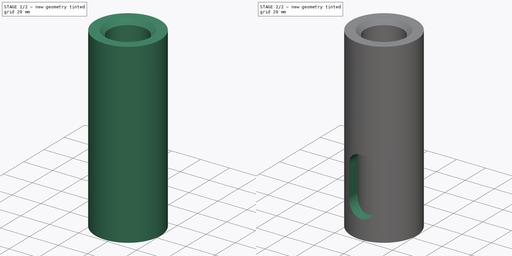
[diagram: build sequence overview — one tinted view per stage of 2, left to right]
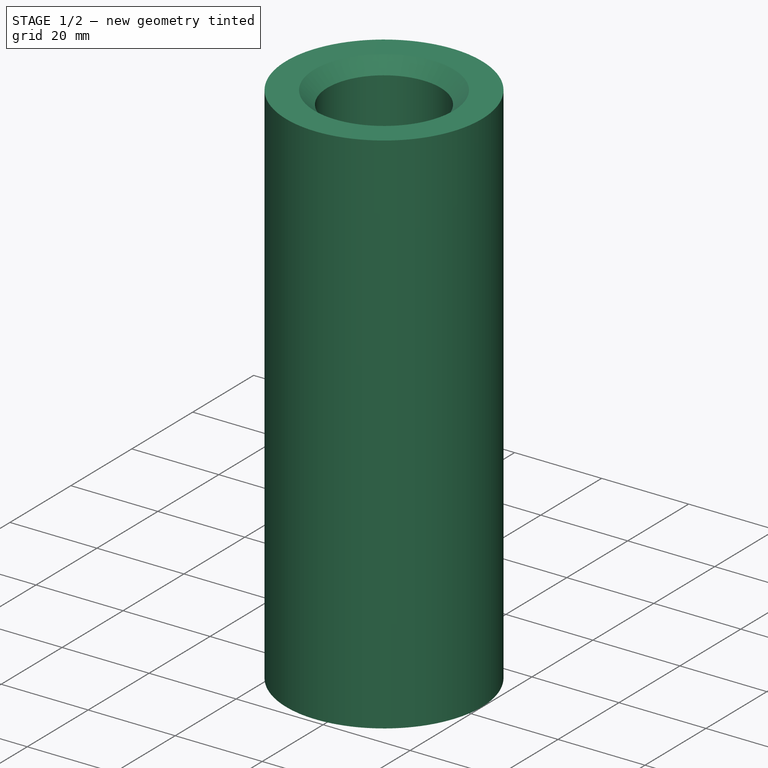
[diagram: stage 1 of 2 — iso view after this stage's code; geometry added in this stage tinted green]
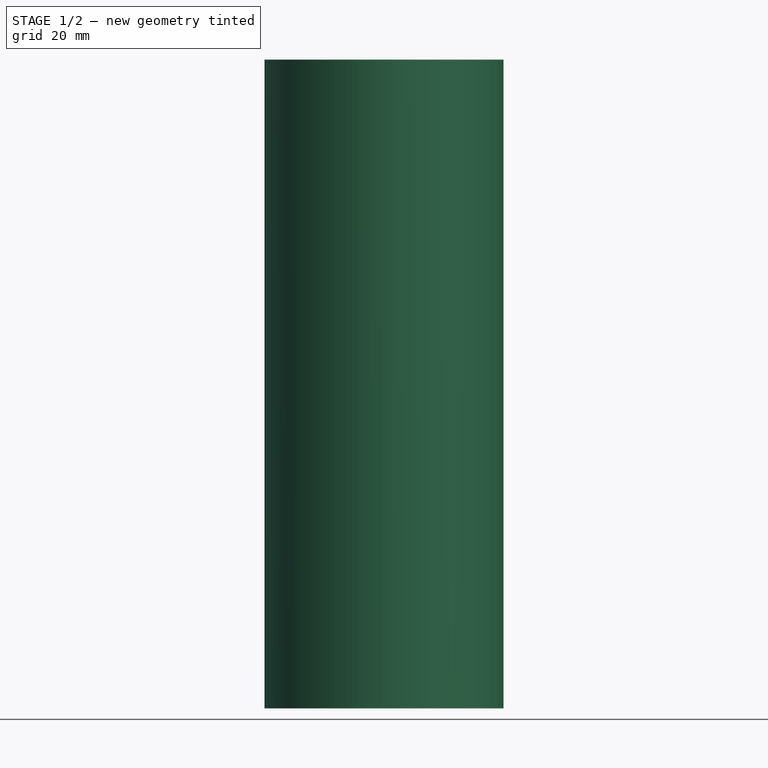
[diagram: stage 1 of 2 — front view after this stage's code; geometry added in this stage tinted green]
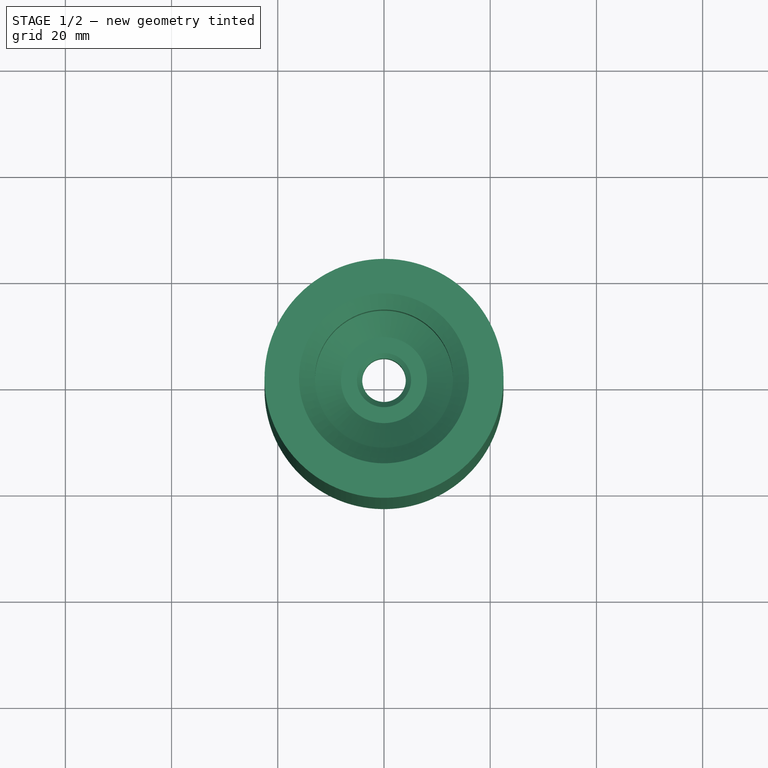
[diagram: stage 1 of 2 — top view after this stage's code; geometry added in this stage tinted green]
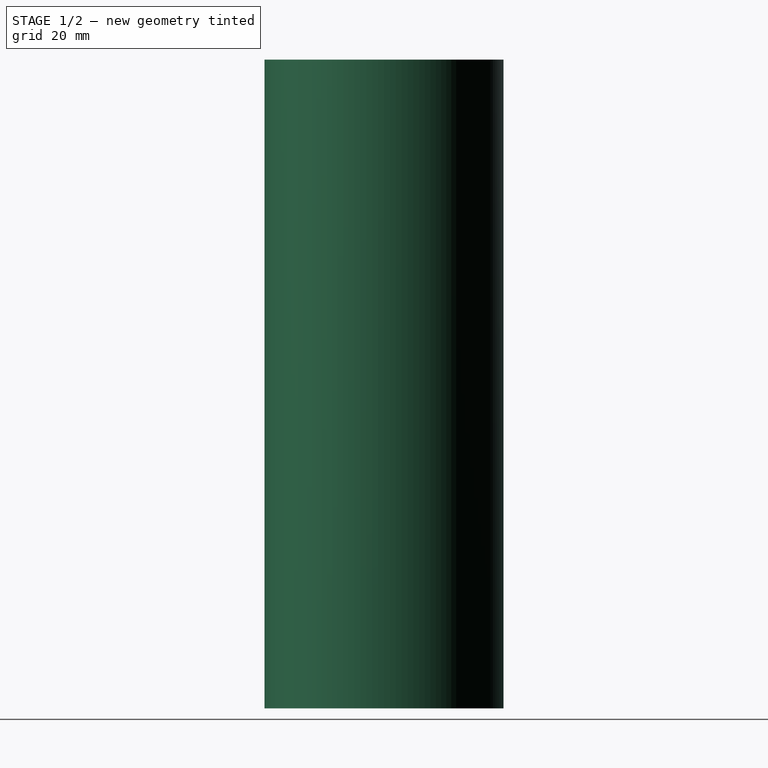
[diagram: stage 1 of 2 — right view after this stage's code; geometry added in this stage tinted green]
FCSTD DOCUMENT  (FreeCAD 0.21R33668 +26 (Git))
Label: concentricity_tool
License: All rights reserved
LicenseURL: https://en.wikipedia.org/wiki/All_rights_reserved
objects: Sketcher::SketchObject×2, PartDesign::Revolution×1, PartDesign::Pocket×1, PartDesign::Body×1
note: 7 computed .brp shape members not serialized (recipe doc carries the construction recipe); baked Part::Feature solids carry a one-line shape summary decoded from their .brp

FEATURE [Sketcher::SketchObject] Sketch
  FullyConstrained = true
  MapMode = 5
  Placement = pos=(0,0,0) rot=(1,0,0;1.5708rad)
  Support = -> [XZ_Plane]
  sketch-geometry (11):
    g0: LineSegment StartX=-22.5 StartY=0 StartZ=0 EndX=-15.5 EndY=0 EndZ=0
    g1: LineSegment StartX=-4.1 StartY=102.15 StartZ=0 EndX=-4.1 EndY=93.15 EndZ=0
    g2: LineSegment StartX=-4.1 StartY=93.15 StartZ=0 EndX=-15.5 EndY=75 EndZ=0
    g3: LineSegment StartX=-15.5 StartY=75 StartZ=0 EndX=-15.5 EndY=0 EndZ=0
    g4: LineSegment StartX=-8.1 StartY=103.15 StartZ=0 EndX=-5.1 EndY=103.15 EndZ=0
    g5: LineSegment StartX=-22.5 StartY=0 StartZ=0 EndX=-22.5 EndY=122.15 EndZ=0
    g6: LineSegment StartX=-22.5 StartY=122.15 StartZ=0 EndX=-16 EndY=122.15 EndZ=0
    g7: LineSegment StartX=-8.1 StartY=103.15 StartZ=0 EndX=-13 EndY=107.35 EndZ=0
    g8: LineSegment StartX=-13 StartY=107.35 StartZ=0 EndX=-13 EndY=119.15 EndZ=0
    g9: LineSegment StartX=-5.1 StartY=103.15 StartZ=0 EndX=-4.1 EndY=102.15 EndZ=0
    g10: LineSegment StartX=-16 StartY=122.15 StartZ=0 EndX=-13 EndY=119.15 EndZ=0
  constraints (34):
    c: PointOnObject(g0,g-1)
    c: Horizontal(g0)
    c: Vertical(g1)
    c: Coincident(g2,g1)
    c: Coincident(g3,g2)
    c: Vertical(g3)
    c: Coincident(g0,g3)
    c: DistanceX(g0,g-1) = 15.5
    c: DistanceY(g3,g3) = 75
    c: Horizontal(g4)
    c: DistanceX(g4,g-1) = 8.1
    c: Coincident(g5,g0)
    c: Vertical(g5)
    c: DistanceY(g4,g5) = 19
    c: DistanceX(g0,g0) = 7
    c: Coincident(g6,g5)
    c: Horizontal(g6)
    c: Coincident(g7,g4)
    c: Coincident(g8,g7)
    c: Vertical(g8)
    c: DistanceY(g4,g7) = 4.2
    c: Angle(g9,g1) = 2.35619
    c: Coincident(g1,g9)
    c: Coincident(g4,g9)
    c: DistanceX(g1,g-1) = 4.1
    c: DistanceY(g-1,g4) = 103.15
    c: DistanceY(g1,g4) = 10
    c: DistanceY(g1,g4) = 1
    c: Coincident(g6,g10)
    c: Coincident(g8,g10)
    c: DistanceX(g8,g-1) = 13
    c: DistanceY(g8,g6) = 3
    c: Angle(g10,g8) = 2.35619
    c: Angle(g3,g2) = 2.58077
FEATURE [PartDesign::Revolution] Revolution
  Angle = 360
  Axis = (0,-2e-16,1)
  Base = (0,0,0)
  Placement = pos=(0,0,0) rot=(1,0,0;1.5708rad)
  Profile = -> Sketch
  ReferenceAxis = -> Sketch [V_Axis]
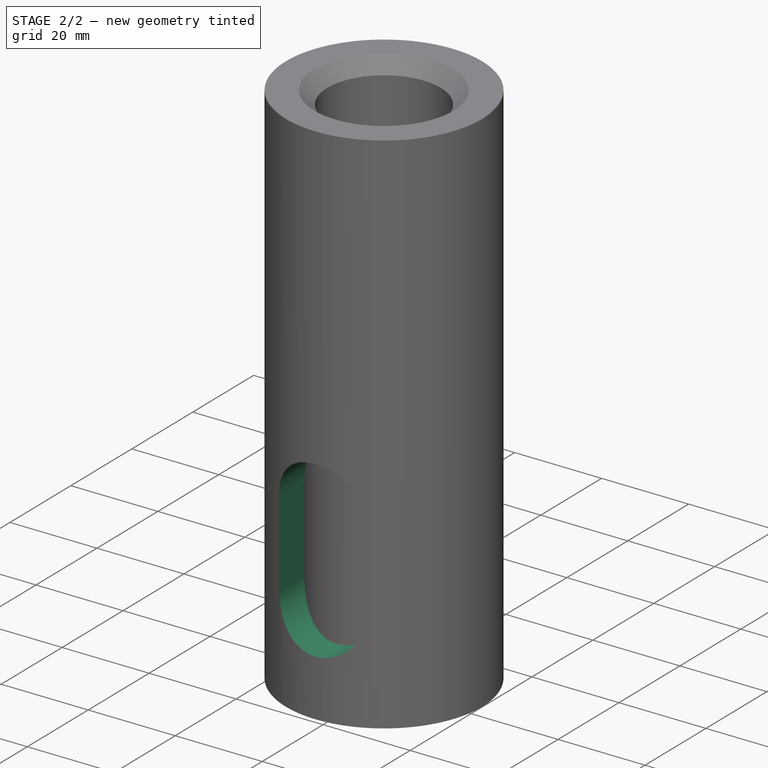
[diagram: stage 2 of 2 — iso view after this stage's code; geometry added in this stage tinted green]
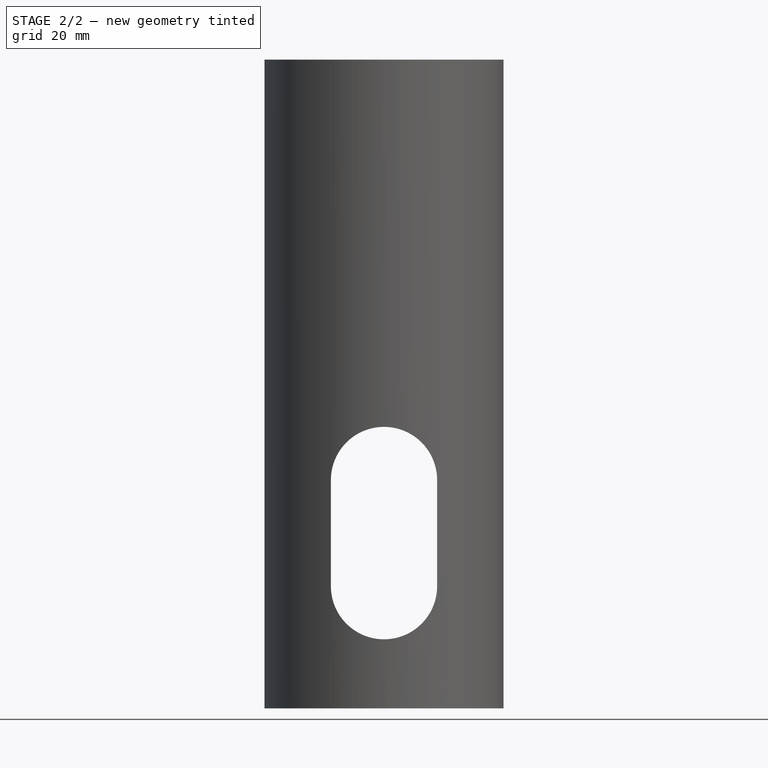
[diagram: stage 2 of 2 — front view after this stage's code; geometry added in this stage tinted green]
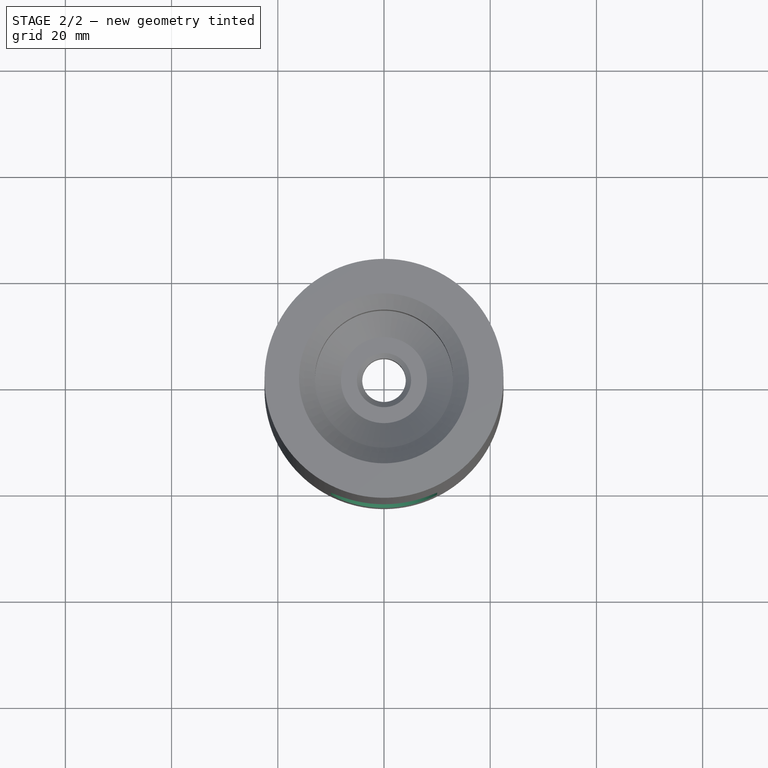
[diagram: stage 2 of 2 — top view after this stage's code; geometry added in this stage tinted green]
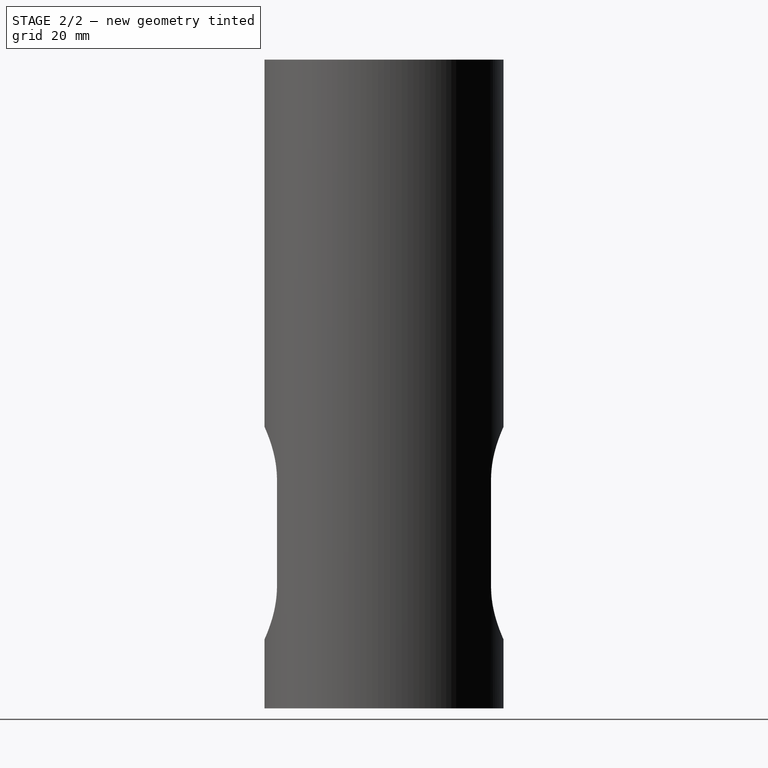
[diagram: stage 2 of 2 — right view after this stage's code; geometry added in this stage tinted green]
FEATURE [Sketcher::SketchObject] Sketch001
  FullyConstrained = true
  MapMode = 5
  Placement = pos=(0,0,0) rot=(1,0,0;1.5708rad)
  Support = -> [XZ_Plane]
  sketch-geometry (5):
    g0: ArcOfCircle CenterX=0 CenterY=23 CenterZ=0 NormalX=0 NormalY=0 NormalZ=1 AngleXU=0 Radius=10 StartAngle=3.14159 EndAngle=6.28319
    g1: ArcOfCircle CenterX=0 CenterY=43 CenterZ=0 NormalX=0 NormalY=0 NormalZ=1 AngleXU=0 Radius=10 StartAngle=-8e-15 EndAngle=3.14159
    g2: LineSegment StartX=10 StartY=23 StartZ=0 EndX=10 EndY=43 EndZ=0
    g3: LineSegment StartX=-10 StartY=43 StartZ=0 EndX=-10 EndY=23 EndZ=0
    g4: LineSegment StartX=0 StartY=0 StartZ=0 EndX=0 EndY=22.5 EndZ=0
  constraints (13):
    c: Tangent(g0,g2) = -1.5708
    c: Tangent(g2,g1) = -1.5708
    c: Tangent(g1,g3) = -1.5708
    c: Tangent(g3,g0) = -1.5708
    c: Equal(g0,g1)
    c: PointOnObject(g0,g-2)
    c: PointOnObject(g1,g-2)
    c: DistanceY(g-1,g0) = 23
    c: DistanceY(g0,g1) = 20
    c: Diameter(g0) = 20
    c: Coincident(g4,g-1)
    c: PointOnObject(g4,g-2)
    c: DistanceY(g4,g4) = 22.5
FEATURE [PartDesign::Pocket] Pocket
  BaseFeature = -> Revolution
  Direction = (0,1,2e-16)
  Length = 11
  Length2 = 5
  Midplane = true
  Placement = pos=(0,0,0) rot=(1,0,0;1.5708rad)
  Profile = -> Sketch001
  ReferenceAxis = -> Sketch001 [N_Axis]
  Type = 1
FEATURE [PartDesign::Body] Body
  Group = -> [Sketch,Revolution,Sketch001,Pocket]
  Origin = -> Origin
  Tip = -> Pocket
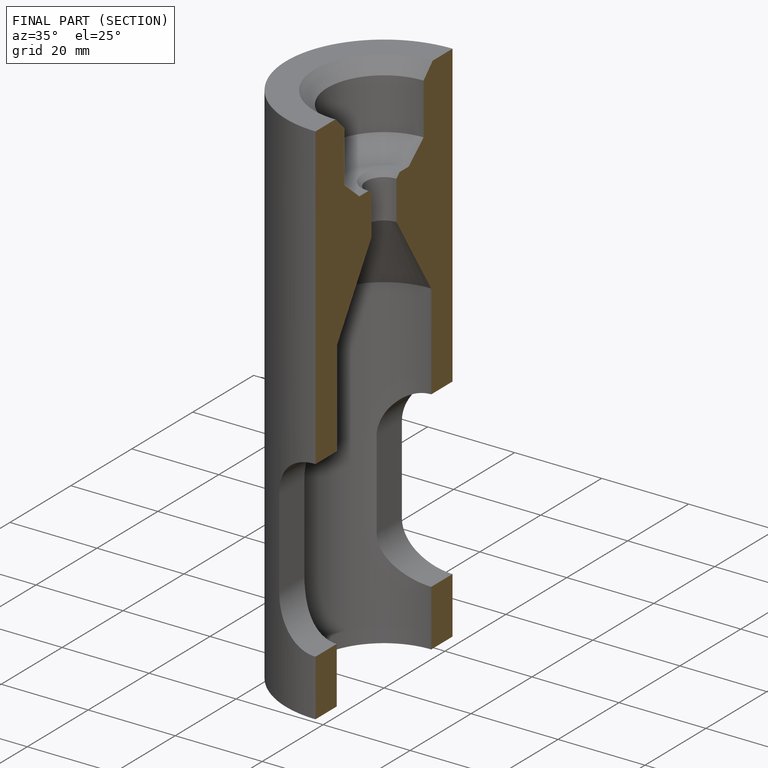
[diagram: finished part — half-section view (interior)]
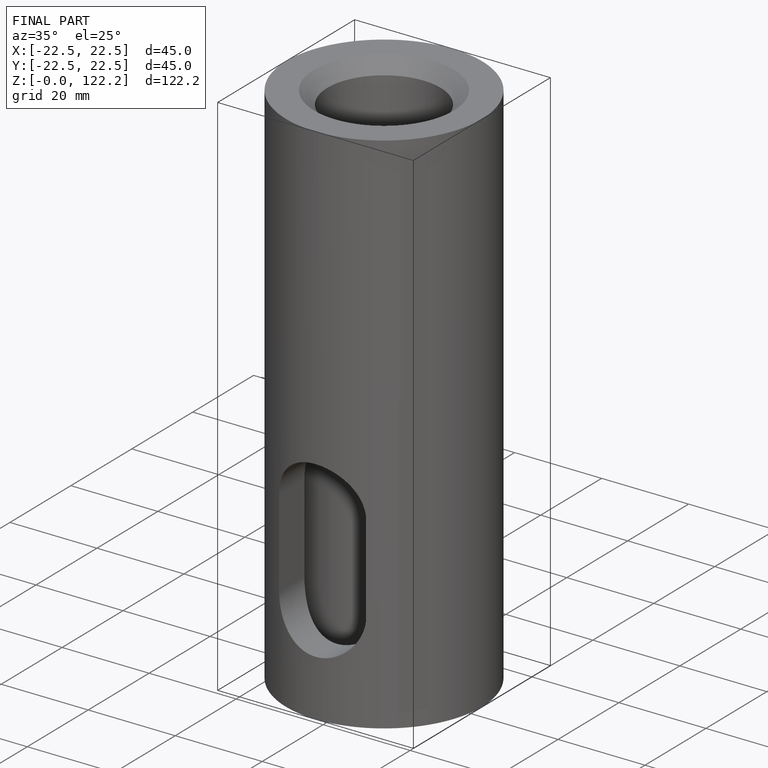
[diagram: finished part — iso view with bounding-box wireframe]
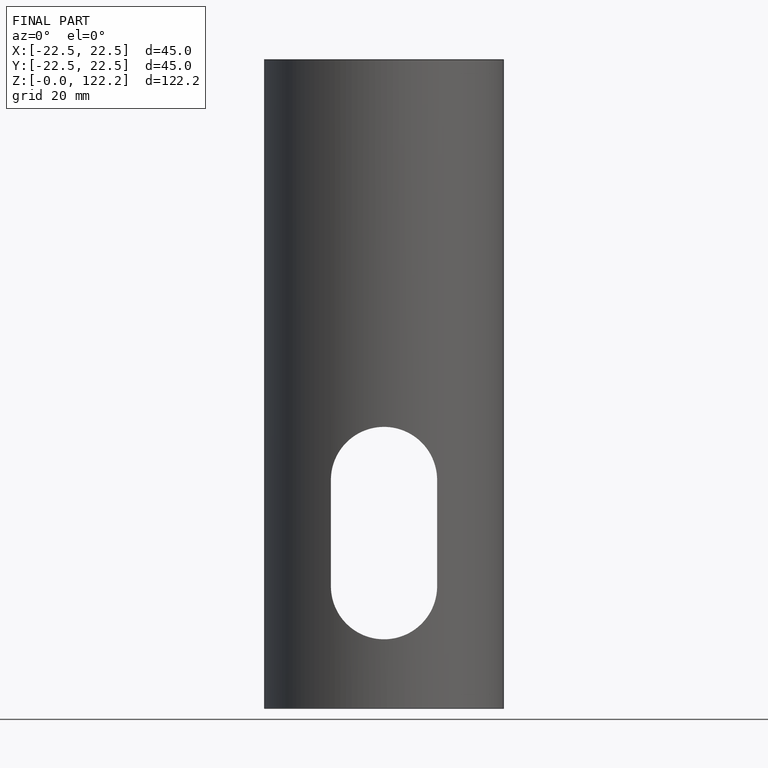
[diagram: finished part — front view with bounding-box wireframe]
